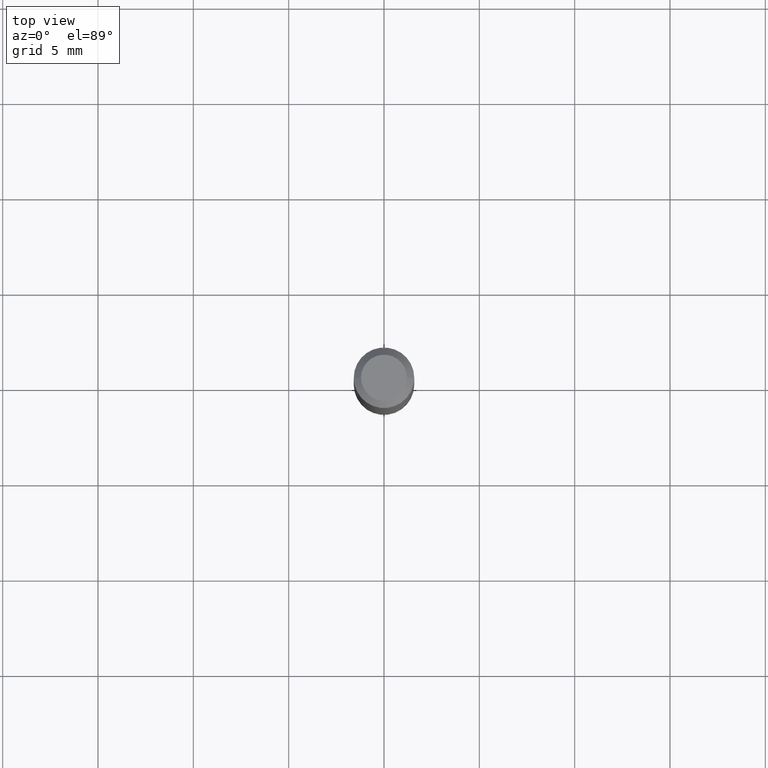
[diagram: clean part render]
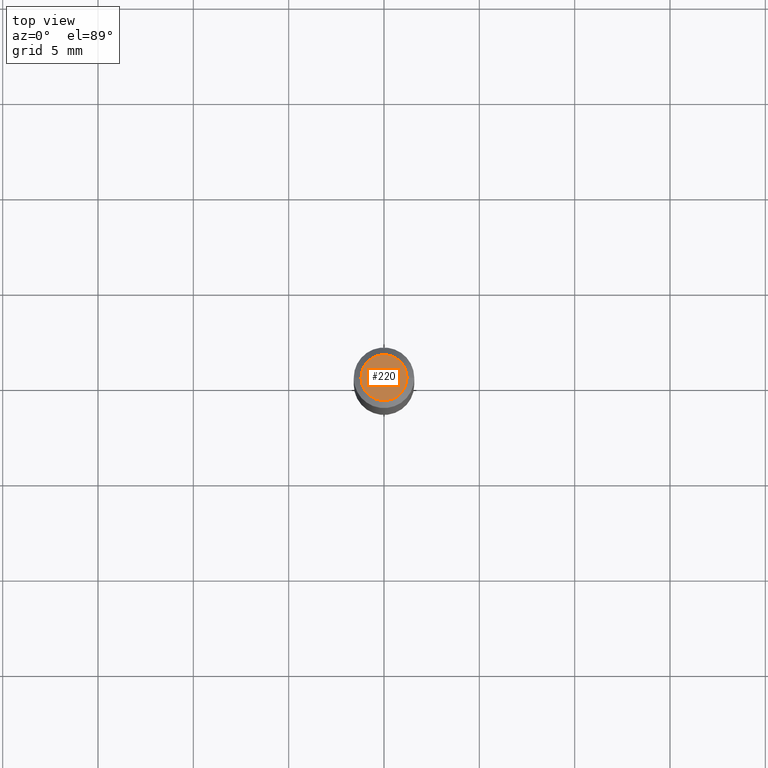
[diagram: same view with one face highlighted and labeled with its STEP entity id]
A machine part, top view. The second image highlights one B-rep face of the part: STEP entity #220.
In plain terms, the highlighted planar face has unit normal (0, -0, -1).
Its self-contained STEP definition (entity closure, byte-faithful):
#8 = DIRECTION ( 'NONE',  ( -2.445468806185136597E-29, 3.491481338843145583E-15, 1.000000000000000000 ) ) ;
#17 = CARTESIAN_POINT ( 'NONE',  ( -6.039856226162563845E-45, 8.623313963198305035E-31, 2.469815280770058928E-16 ) ) ;
#32 = ORIENTED_EDGE ( 'NONE', *, *, #441, .T. ) ;
#60 = DIRECTION ( 'NONE',  ( -1.000000000000000000, 6.982962677686265922E-15, -4.876176775795935793E-29 ) ) ;
#70 = CIRCLE ( 'NONE', #146, 0.04749999999999999362 ) ;
#73 = AXIS2_PLACEMENT_3D ( 'NONE', #249, #8, #189 ) ;
#80 = EDGE_CURVE ( 'NONE', #280, #354, #70, .T. ) ;
#119 = CARTESIAN_POINT ( 'NONE',  ( -0.04749999999999999362, 3.578768372314215436E-16, 2.469815280770034769E-16 ) ) ;
#142 = DIRECTION ( 'NONE',  ( 2.438088387897960049E-29, -3.491481338843145188E-15, -1.000000000000000000 ) ) ;
#146 = AXIS2_PLACEMENT_3D ( 'NONE', #17, #366, #262 ) ;
#163 = CARTESIAN_POINT ( 'NONE',  ( 0.04749999999999999362, -4.035134999187574186E-16, 2.469815280770084566E-16 ) ) ;
#174 = FACE_OUTER_BOUND ( 'NONE', #319, .T. ) ;
#189 = DIRECTION ( 'NONE',  ( 1.000000000000000000, -6.982962677686267499E-15, 4.852736867747366768E-29 ) ) ;
#204 = CIRCLE ( 'NONE', #73, 0.04749999999999999362 ) ;
#220 = ADVANCED_FACE ( 'NONE', ( #174 ), #318, .F. ) ;
#235 = AXIS2_PLACEMENT_3D ( 'NONE', #462, #142, #60 ) ;
#249 = CARTESIAN_POINT ( 'NONE',  ( -6.039856226162563845E-45, 8.623313963198305035E-31, 2.469815280770058928E-16 ) ) ;
#262 = DIRECTION ( 'NONE',  ( 1.000000000000000000, -6.982962677686267499E-15, 4.852736867747366768E-29 ) ) ;
#280 = VERTEX_POINT ( 'NONE', #119 ) ;
#294 = ORIENTED_EDGE ( 'NONE', *, *, #80, .T. ) ;
#318 = PLANE ( 'NONE',  #235 ) ;
#319 = EDGE_LOOP ( 'NONE', ( #294, #32 ) ) ;
#354 = VERTEX_POINT ( 'NONE', #163 ) ;
#366 = DIRECTION ( 'NONE',  ( -2.445468806185136597E-29, 3.491481338843145583E-15, 1.000000000000000000 ) ) ;
#441 = EDGE_CURVE ( 'NONE', #354, #280, #204, .T. ) ;
#462 = CARTESIAN_POINT ( 'NONE',  ( 3.316907271900976096E-16, 0.04749999999999999362, -4.235459955654645622E-17 ) ) ;